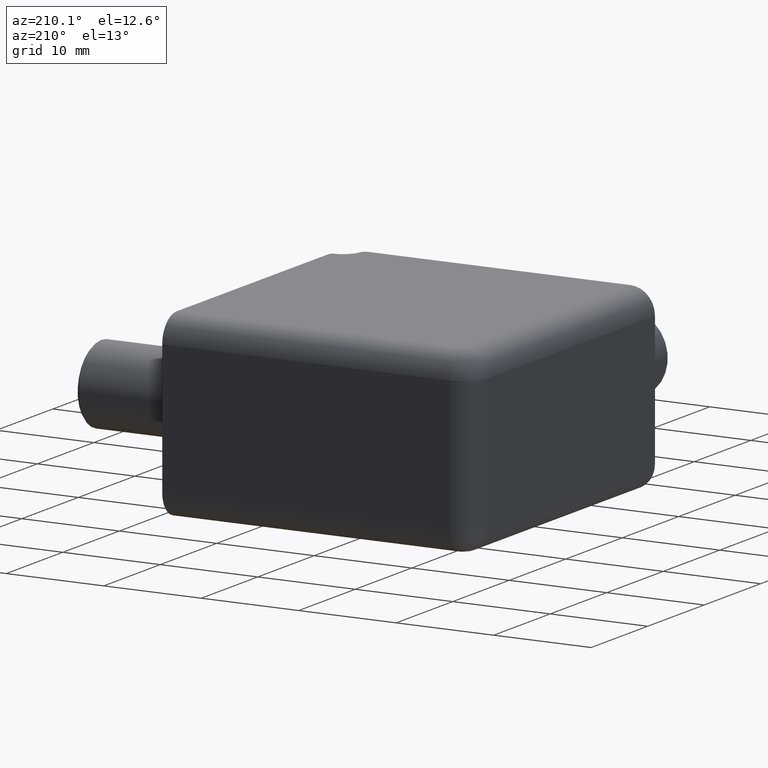
[diagram: clean part render]
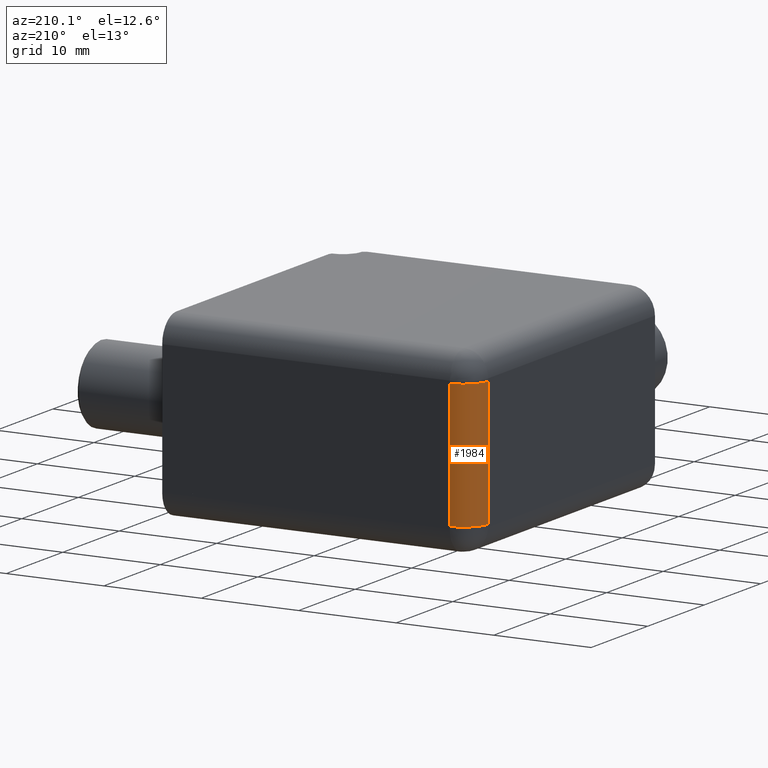
[diagram: same view with one face highlighted and labeled with its STEP entity id]
A machine part, auxiliary view. The second image highlights one B-rep face of the part: STEP entity #1984.
In plain terms, the highlighted cylindrical surface (edge-blend (fillet) strip) has radius 2.5 mm, axis along (0, 0, -1).
Its self-contained STEP definition (entity closure, byte-faithful):
#211=FACE_OUTER_BOUND('',#342,.T.);
#342=EDGE_LOOP('',(#1711,#1712,#1713,#1714));
#509=LINE('',#3466,#683);
#511=LINE('',#3470,#685);
#683=VECTOR('',#2696,1000.);
#685=VECTOR('',#2700,1000.);
#801=CIRCLE('',#2190,2.5);
#803=CIRCLE('',#2197,2.5);
#968=VERTEX_POINT('',#3448);
#969=VERTEX_POINT('',#3450);
#972=VERTEX_POINT('',#3465);
#973=VERTEX_POINT('',#3469);
#1224=EDGE_CURVE('',#969,#968,#801,.T.);
#1232=EDGE_CURVE('',#969,#972,#509,.T.);
#1234=EDGE_CURVE('',#968,#973,#511,.T.);
#1235=EDGE_CURVE('',#972,#973,#803,.T.);
#1711=ORIENTED_EDGE('',*,*,#1232,.F.);
#1712=ORIENTED_EDGE('',*,*,#1224,.T.);
#1713=ORIENTED_EDGE('',*,*,#1234,.T.);
#1714=ORIENTED_EDGE('',*,*,#1235,.F.);
#1899=CYLINDRICAL_SURFACE('',#2196,2.5);
#1984=ADVANCED_FACE('',(#211),#1899,.T.);
#2190=AXIS2_PLACEMENT_3D('',#3451,#2678,#2679);
#2196=AXIS2_PLACEMENT_3D('',#3468,#2698,#2699);
#2197=AXIS2_PLACEMENT_3D('',#3471,#2701,#2702);
#2678=DIRECTION('center_axis',(0.,1.82602471155453E-16,-1.));
#2679=DIRECTION('ref_axis',(0.,-1.,-1.82602471155453E-16));
#2696=DIRECTION('',(0.,0.,-1.));
#2698=DIRECTION('center_axis',(0.,0.,-1.));
#2699=DIRECTION('ref_axis',(-1.,0.,0.));
#2700=DIRECTION('',(0.,0.,-1.));
#2701=DIRECTION('center_axis',(0.,-3.65204942310907E-16,-1.));
#2702=DIRECTION('ref_axis',(0.,1.,-3.65204942310907E-16));
#3448=CARTESIAN_POINT('',(-12.7751430278029,18.052285644955,6.50000000013051));
#3450=CARTESIAN_POINT('',(-15.2751430278029,15.552285644955,6.50000000013051));
#3451=CARTESIAN_POINT('Origin',(-12.7751430278029,15.5522856449551,6.50000000001683));
#3465=CARTESIAN_POINT('',(-15.2751430278029,15.552285644955,-6.50000000013051));
#3466=CARTESIAN_POINT('',(-15.2751430278029,15.552285644955,500000.));
#3468=CARTESIAN_POINT('Origin',(-12.7751430278029,15.5522856449551,500000.));
#3469=CARTESIAN_POINT('',(-12.7751430278029,18.052285644955,-6.5000000002442));
#3470=CARTESIAN_POINT('',(-12.7751430278029,18.052285644955,500000.));
#3471=CARTESIAN_POINT('Origin',(-12.7751430278029,15.5522856449551,-6.50000000001683));